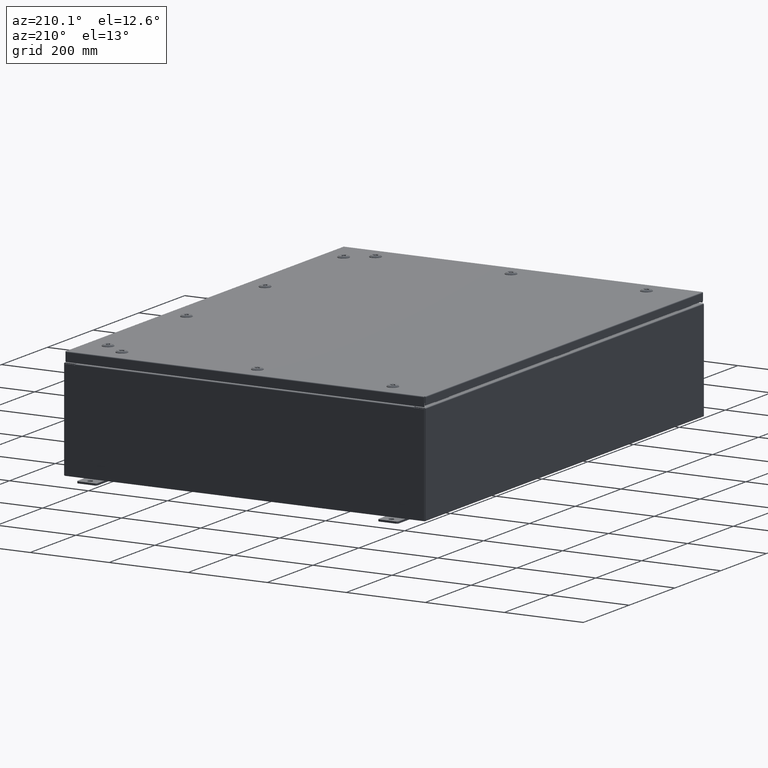
[diagram: clean part render]
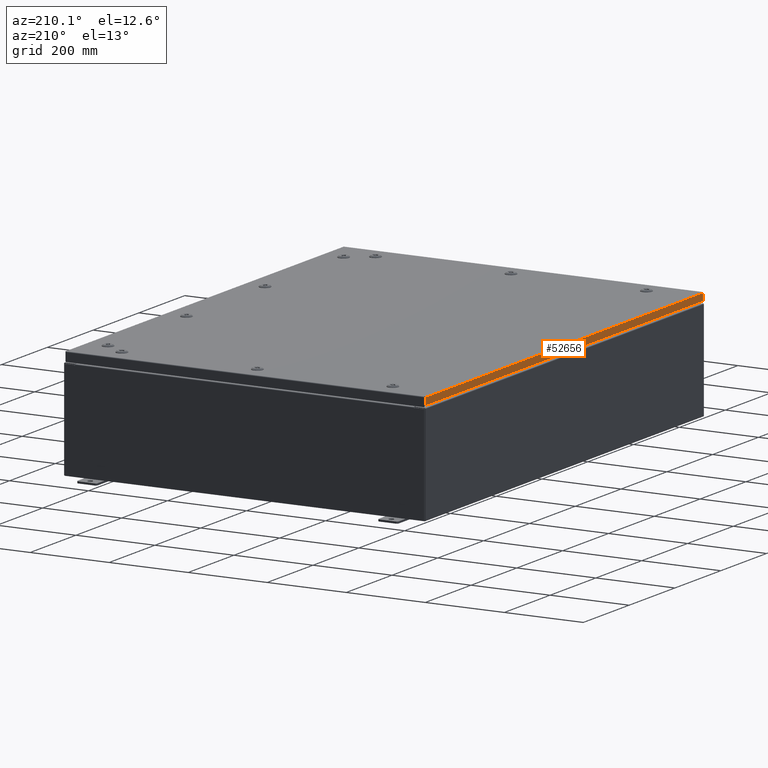
[diagram: same view with one face highlighted and labeled with its STEP entity id]
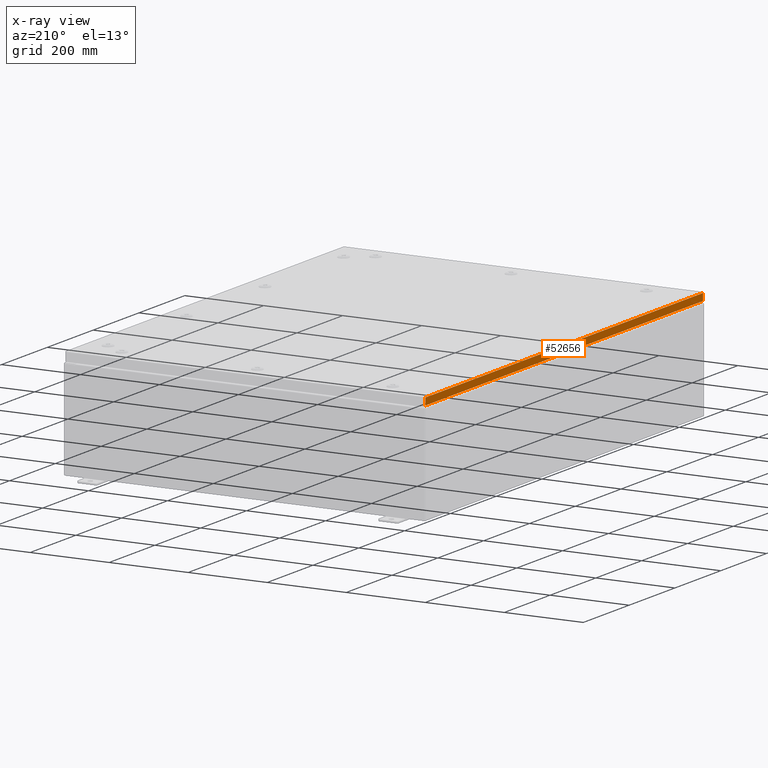
[diagram: x-ray of the same camera — body ghosted, the highlighted face saturated]
A machine part, auxiliary view. The second image highlights one B-rep face of the part: STEP entity #52656.
The next image is the same camera in x-ray: the body ghosted, the highlighted face saturated — about 0% of this face is hidden behind the body in this view.
In plain terms, the highlighted planar face has unit normal (1, -0, -0).
Its self-contained STEP definition (entity closure, byte-faithful):
#961 = LINE ( 'NONE', #5139, #59149 ) ;
#1465 = CARTESIAN_POINT ( 'NONE',  ( -17.93750000000000000, -23.84865786437626800, -0.08770000000000334500 ) ) ;
#2189 = EDGE_CURVE ( 'NONE', #26299, #21690, #35526, .T. ) ;
#3067 = CARTESIAN_POINT ( 'NONE',  ( -17.93750000000000000, -23.84865786437627100, -0.07469999999999976700 ) ) ;
#3747 = CARTESIAN_POINT ( 'NONE',  ( -17.93750000000000000, -23.84865786437626800, -0.7949999999999996000 ) ) ;
#5139 = CARTESIAN_POINT ( 'NONE',  ( -17.93750000000000000, -23.93750000000000000, -0.08770000000000004200 ) ) ;
#8435 = DIRECTION ( 'NONE',  ( -3.034122441942816500E-015, 6.982962677686267500E-015, -1.000000000000000000 ) ) ;
#10306 = VERTEX_POINT ( 'NONE', #25777 ) ;
#13254 = VECTOR ( 'NONE', #8435, 39.37007874015748100 ) ;
#13375 = EDGE_CURVE ( 'NONE', #10306, #21690, #29425, .T. ) ;
#15875 = EDGE_CURVE ( 'NONE', #10306, #17422, #961, .T. ) ;
#16177 = AXIS2_PLACEMENT_3D ( 'NONE', #20036, #57174, #25366 ) ;
#17422 = VERTEX_POINT ( 'NONE', #1465 ) ;
#17660 = EDGE_CURVE ( 'NONE', #17422, #26299, #41427, .T. ) ;
#20036 = CARTESIAN_POINT ( 'NONE',  ( -17.93749999999999600, 1.637682243721441900E-015, 5.468538495836084400E-014 ) ) ;
#21690 = VERTEX_POINT ( 'NONE', #21982 ) ;
#21982 = CARTESIAN_POINT ( 'NONE',  ( -17.93749999999999600, 23.84865786437627500, -0.7949999999999938200 ) ) ;
#25366 = DIRECTION ( 'NONE',  ( -3.034122441942816500E-015, 0.0000000000000000000, -1.000000000000000000 ) ) ;
#25777 = CARTESIAN_POINT ( 'NONE',  ( -17.93749999999999600, 23.84865786437627100, -0.08770000000000659200 ) ) ;
#25850 = CARTESIAN_POINT ( 'NONE',  ( -17.93749999999999600, 23.84865786437627100, 2.212196727382094500E-013 ) ) ;
#26299 = VERTEX_POINT ( 'NONE', #3747 ) ;
#28184 = FACE_OUTER_BOUND ( 'NONE', #49855, .T. ) ;
#29425 = LINE ( 'NONE', #25850, #57692 ) ;
#30441 = PLANE ( 'NONE',  #16177 ) ;
#34093 = DIRECTION ( 'NONE',  ( 9.129935853499365900E-017, 1.000000000000000000, 1.226835130313977200E-016 ) ) ;
#35526 = LINE ( 'NONE', #55250, #63793 ) ;
#36731 = DIRECTION ( 'NONE',  ( -9.129935853499285800E-017, -1.000000000000000000, 1.369490378024904800E-016 ) ) ;
#41427 = LINE ( 'NONE', #3067, #13254 ) ;
#45942 = ORIENTED_EDGE ( 'NONE', *, *, #2189, .F. ) ;
#49855 = EDGE_LOOP ( 'NONE', ( #60963, #59141, #45942, #60332 ) ) ;
#52656 = ADVANCED_FACE ( 'NONE', ( #28184 ), #30441, .F. ) ;
#55250 = CARTESIAN_POINT ( 'NONE',  ( -17.93750000000000000, -23.93750000000000000, -0.7949999999999997100 ) ) ;
#57174 = DIRECTION ( 'NONE',  ( 1.000000000000000000, -9.129935853499329000E-017, -3.034122441942816500E-015 ) ) ;
#57692 = VECTOR ( 'NONE', #68289, 39.37007874015748100 ) ;
#59141 = ORIENTED_EDGE ( 'NONE', *, *, #13375, .T. ) ;
#59149 = VECTOR ( 'NONE', #36731, 39.37007874015748100 ) ;
#60332 = ORIENTED_EDGE ( 'NONE', *, *, #17660, .F. ) ;
#60963 = ORIENTED_EDGE ( 'NONE', *, *, #15875, .F. ) ;
#63793 = VECTOR ( 'NONE', #34093, 39.37007874015748100 ) ;
#68289 = DIRECTION ( 'NONE',  ( -3.034122441942816500E-015, 6.982962677686267500E-015, -1.000000000000000000 ) ) ;